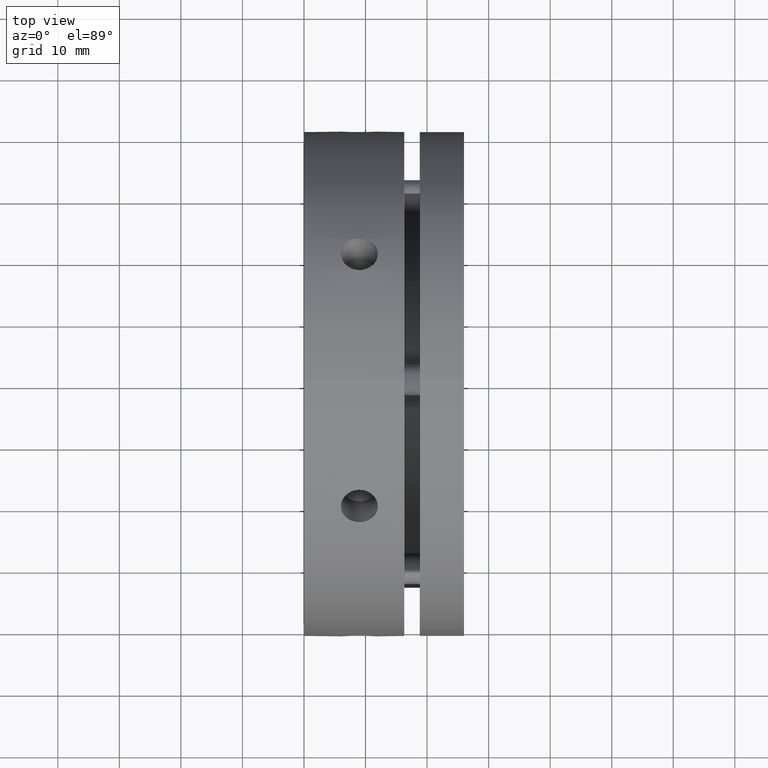
[diagram: clean part render]
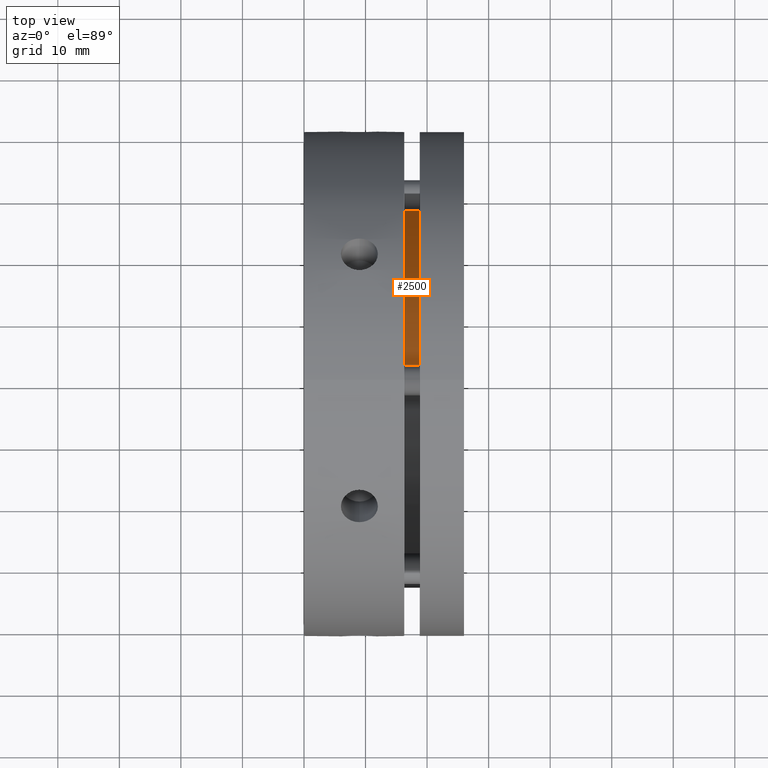
[diagram: same view with one face highlighted and labeled with its STEP entity id]
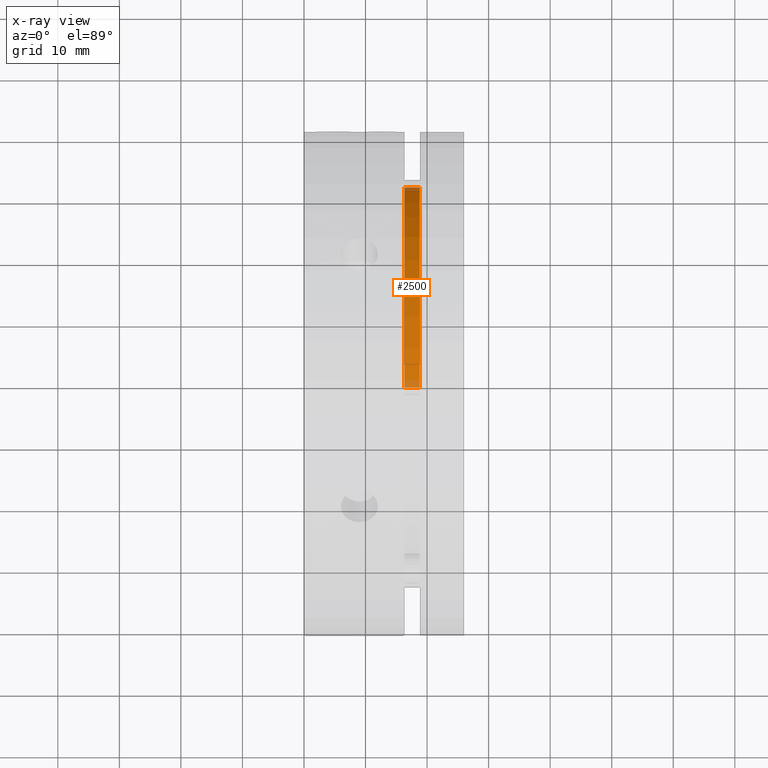
[diagram: x-ray of the same camera — body ghosted, the highlighted face saturated]
A machine part, top view. The second image highlights one B-rep face of the part: STEP entity #2500.
The next image is the same camera in x-ray: the body ghosted, the highlighted face saturated — about 5% of this face is hidden behind the body in this view.
In plain terms, the highlighted cylindrical surface (partial cylindrical patch) has radius 32 mm, axis along (-1, 0, 0).
Its self-contained STEP definition (entity closure, byte-faithful):
#756 = ORIENTED_EDGE ( 'NONE', *, *, #4521, .F. ) ;
#838 = ORIENTED_EDGE ( 'NONE', *, *, #4523, .T. ) ;
#839 = ORIENTED_EDGE ( 'NONE', *, *, #4522, .T. ) ;
#903 = EDGE_LOOP ( 'NONE', ( #904, #838, #839, #756 ) ) ;
#904 = ORIENTED_EDGE ( 'NONE', *, *, #4524, .T. ) ;
#1110 = AXIS2_PLACEMENT_3D ( 'NONE', #2324, #2325, #2326 ) ;
#1111 = AXIS2_PLACEMENT_3D ( 'NONE', #2329, #2330, #2331 ) ;
#1347 = DIRECTION ( 'NONE',  ( 0.0000000000000000000, 0.0000000000000000000, 1.000000000000000000 ) ) ;
#1349 = DIRECTION ( 'NONE',  ( -1.000000000000000000, 0.0000000000000000000, 0.0000000000000000000 ) ) ;
#1351 = CARTESIAN_POINT ( 'NONE',  ( 17.54999999999999400, 0.0000000000000000000, 0.0000000000000000000 ) ) ;
#2049 = CARTESIAN_POINT ( 'NONE',  ( 18.79999999999999400, 3.918869757271531100E-015, -32.00000000000000700 ) ) ;
#2055 = CARTESIAN_POINT ( 'NONE',  ( 18.79999999999999400, 0.0000000000000000000, 32.00000000000000700 ) ) ;
#2061 = CARTESIAN_POINT ( 'NONE',  ( 16.29999999999999400, 3.918869757271531100E-015, -32.00000000000000700 ) ) ;
#2063 = CARTESIAN_POINT ( 'NONE',  ( 16.29999999999999400, 0.0000000000000000000, 32.00000000000000700 ) ) ;
#2311 = DIRECTION ( 'NONE',  ( -1.000000000000000000, 0.0000000000000000000, 0.0000000000000000000 ) ) ;
#2316 = CARTESIAN_POINT ( 'NONE',  ( 17.54999999999999400, 0.0000000000000000000, 32.00000000000000700 ) ) ;
#2320 = DIRECTION ( 'NONE',  ( -1.000000000000000000, 0.0000000000000000000, 0.0000000000000000000 ) ) ;
#2323 = CARTESIAN_POINT ( 'NONE',  ( 17.54999999999999400, 3.918869757271531100E-015, -32.00000000000000700 ) ) ;
#2324 = CARTESIAN_POINT ( 'NONE',  ( 16.29999999999999400, 0.0000000000000000000, 0.0000000000000000000 ) ) ;
#2325 = DIRECTION ( 'NONE',  ( 1.000000000000000000, -0.0000000000000000000, -0.0000000000000000000 ) ) ;
#2326 = DIRECTION ( 'NONE',  ( 0.0000000000000000000, 0.0000000000000000000, 1.000000000000000000 ) ) ;
#2329 = CARTESIAN_POINT ( 'NONE',  ( 18.79999999999999400, 0.0000000000000000000, 0.0000000000000000000 ) ) ;
#2330 = DIRECTION ( 'NONE',  ( -1.000000000000000000, 0.0000000000000000000, 0.0000000000000000000 ) ) ;
#2331 = DIRECTION ( 'NONE',  ( 0.0000000000000000000, 0.0000000000000000000, 1.000000000000000000 ) ) ;
#2500 = ADVANCED_FACE ( 'NONE', ( #2850 ), #2859, .T. ) ;
#2850 = FACE_OUTER_BOUND ( 'NONE', #903, .T. ) ;
#2859 = CYLINDRICAL_SURFACE ( 'NONE', #4606, 32.00000000000000700 ) ;
#3114 = VERTEX_POINT ( 'NONE', #2049 ) ;
#3120 = VERTEX_POINT ( 'NONE', #2055 ) ;
#3123 = VERTEX_POINT ( 'NONE', #2061 ) ;
#3124 = VERTEX_POINT ( 'NONE', #2063 ) ;
#3987 = LINE ( 'NONE', #2316, #3992 ) ;
#3990 = CIRCLE ( 'NONE', #1110, 32.00000000000000700 ) ;
#3991 = LINE ( 'NONE', #2323, #3995 ) ;
#3992 = VECTOR ( 'NONE', #2311, 1000.000000000000000 ) ;
#3994 = CIRCLE ( 'NONE', #1111, 32.00000000000000700 ) ;
#3995 = VECTOR ( 'NONE', #2320, 1000.000000000000000 ) ;
#4521 = EDGE_CURVE ( 'NONE', #3120, #3124, #3987, .T. ) ;
#4522 = EDGE_CURVE ( 'NONE', #3123, #3124, #3990, .T. ) ;
#4523 = EDGE_CURVE ( 'NONE', #3114, #3123, #3991, .T. ) ;
#4524 = EDGE_CURVE ( 'NONE', #3120, #3114, #3994, .T. ) ;
#4606 = AXIS2_PLACEMENT_3D ( 'NONE', #1351, #1349, #1347 ) ;